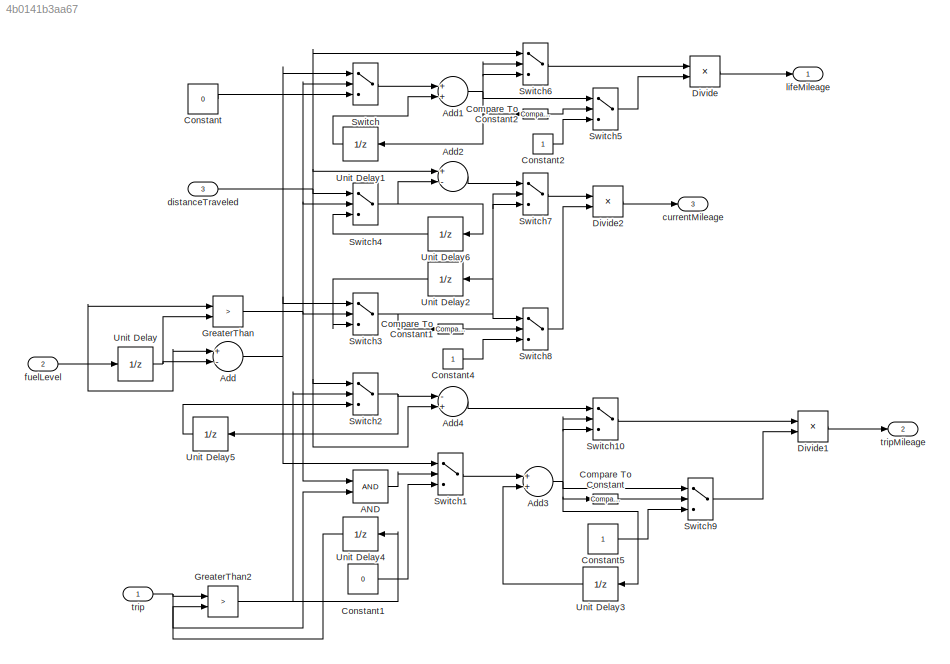
MODEL slx_4b0141b3aa67
KIND model
CONFIG AbsTol = auto
CONFIG EnableMultiTasking = off
CONFIG FixedStep = auto
CONFIG MaxStep = auto
CONFIG MinStep = auto
CONFIG RelTol = 1e-3
CONFIG SampleTimeConstraint = Unconstrained
CONFIG Solver = FixedStepAuto
CONFIG SolverName = FixedStepAuto
CONFIG StartTime = 0.0
CONFIG StopTime = 100
BLOCK [Logic] AND
  AllPortsSameDT = off
  OutDataTypeStr = boolean
  Ports = [2, 1]
BLOCK [Sum] Add
  InputSameDT = off
  Inputs = +-
  OutDataTypeStr = Inherit: Inherit via internal rule
  Ports = [2, 1]
  SaturateOnIntegerOverflow = off
BLOCK [Sum] Add1
  InputSameDT = off
  OutDataTypeStr = Inherit: Inherit via internal rule
  Ports = [2, 1]
  SaturateOnIntegerOverflow = off
BLOCK [Sum] Add2
  InputSameDT = off
  Inputs = +-
  OutDataTypeStr = Inherit: Inherit via internal rule
  Ports = [2, 1]
  SaturateOnIntegerOverflow = off
BLOCK [Sum] Add3
  InputSameDT = off
  OutDataTypeStr = Inherit: Inherit via internal rule
  Ports = [2, 1]
  SaturateOnIntegerOverflow = off
BLOCK [Sum] Add4
  InputSameDT = off
  Inputs = -+
  OutDataTypeStr = Inherit: Inherit via internal rule
  Ports = [2, 1]
  SaturateOnIntegerOverflow = off
BLOCK [Reference] Compare To Constant  REF=simulink/Logic and Bit
Operations/Compare
To Constant
  Ports = [1, 1]
  SourceBlock = simulink/Logic and Bit\nOperations/Compare\nTo Constant
  SourceProductBaseCode = SL
  SourceProductName = Simulink
  SourceType = Compare To Constant
BLOCK [Reference] Compare To Constant1  REF=simulink/Logic and Bit
Operations/Compare
To Constant
  Ports = [1, 1]
  SourceBlock = simulink/Logic and Bit\nOperations/Compare\nTo Constant
  SourceProductBaseCode = SL
  SourceProductName = Simulink
  SourceType = Compare To Constant
BLOCK [Reference] Compare To Constant2  REF=simulink/Logic and Bit
Operations/Compare
To Constant
  Ports = [1, 1]
  SourceBlock = simulink/Logic and Bit\nOperations/Compare\nTo Constant
  SourceProductBaseCode = SL
  SourceProductName = Simulink
  SourceType = Compare To Constant
BLOCK [Constant] Constant
  Value = 0
BLOCK [Constant] Constant1
  Value = 0
BLOCK [Constant] Constant2
BLOCK [Constant] Constant4
BLOCK [Constant] Constant5
BLOCK [Product] Divide
  InputSameDT = off
  Inputs = */
  OutDataTypeStr = Inherit: Inherit via internal rule
  Ports = [2, 1]
  RndMeth = Floor
  SaturateOnIntegerOverflow = off
BLOCK [Product] Divide1
  InputSameDT = off
  Inputs = */
  OutDataTypeStr = Inherit: Inherit via internal rule
  Ports = [2, 1]
  RndMeth = Floor
  SaturateOnIntegerOverflow = off
BLOCK [Product] Divide2
  InputSameDT = off
  Inputs = */
  OutDataTypeStr = Inherit: Inherit via internal rule
  Ports = [2, 1]
  RndMeth = Floor
  SaturateOnIntegerOverflow = off
BLOCK [RelationalOperator] GreaterThan
  InputSameDT = off
  Operator = >
  OutDataTypeStr = boolean
  Ports = [2, 1]
  RndMeth = Simplest
BLOCK [RelationalOperator] GreaterThan2
  InputSameDT = off
  Operator = >
  OutDataTypeStr = boolean
  Ports = [2, 1]
  RndMeth = Simplest
BLOCK [Switch] Switch
  Criteria = u2 ~= 0
  InputSameDT = off
  SaturateOnIntegerOverflow = off
BLOCK [Switch] Switch1
  Criteria = u2 ~= 0
  InputSameDT = off
  SaturateOnIntegerOverflow = off
BLOCK [Switch] Switch10
  Criteria = u2 ~= 0
  InputSameDT = off
  SaturateOnIntegerOverflow = off
BLOCK [Switch] Switch2
  Criteria = u2 ~= 0
  InputSameDT = off
  SaturateOnIntegerOverflow = off
BLOCK [Switch] Switch3
  Criteria = u2 ~= 0
  InputSameDT = off
  SaturateOnIntegerOverflow = off
BLOCK [Switch] Switch4
  Criteria = u2 ~= 0
  InputSameDT = off
  SaturateOnIntegerOverflow = off
BLOCK [Switch] Switch5
  Criteria = u2 ~= 0
  InputSameDT = off
  SaturateOnIntegerOverflow = off
BLOCK [Switch] Switch6
  Criteria = u2 ~= 0
  InputSameDT = off
  SaturateOnIntegerOverflow = off
BLOCK [Switch] Switch7
  Criteria = u2 ~= 0
  InputSameDT = off
  SaturateOnIntegerOverflow = off
BLOCK [Switch] Switch8
  Criteria = u2 ~= 0
  InputSameDT = off
  SaturateOnIntegerOverflow = off
BLOCK [Switch] Switch9
  Criteria = u2 ~= 0
  InputSameDT = off
  SaturateOnIntegerOverflow = off
BLOCK [UnitDelay] Unit Delay
  HasFrameUpgradeWarning = on
  SampleTime = -1
BLOCK [UnitDelay] Unit Delay1
  HasFrameUpgradeWarning = on
  SampleTime = -1
BLOCK [UnitDelay] Unit Delay2
  HasFrameUpgradeWarning = on
  SampleTime = -1
BLOCK [UnitDelay] Unit Delay3
  HasFrameUpgradeWarning = on
  SampleTime = -1
BLOCK [UnitDelay] Unit Delay4
  HasFrameUpgradeWarning = on
  SampleTime = -1
BLOCK [UnitDelay] Unit Delay5
  HasFrameUpgradeWarning = on
  SampleTime = -1
BLOCK [UnitDelay] Unit Delay6
  HasFrameUpgradeWarning = on
  SampleTime = -1
BLOCK [Outport] currentMileage
  IconDisplay = Port number
  Port = 3
BLOCK [Inport] distanceTraveled
  IconDisplay = Port number
  Port = 3
BLOCK [Inport] fuelLevel
  IconDisplay = Port number
  Port = 2
BLOCK [Outport] lifeMileage
  IconDisplay = Port number
BLOCK [Inport] trip
  IconDisplay = Port number
BLOCK [Outport] tripMileage
  IconDisplay = Port number
  Port = 2
LINE AND:1 -> Switch1:2
NET Add1:1 -> Compare To Constant2:1, Switch5:1, Switch6:2, Switch6:3, Unit Delay1:1
LINE Add2:1 -> Switch7:1
NET Add3:1 -> Compare To Constant:1, Switch10:2, Switch10:3, Switch9:1, Unit Delay3:1
LINE Add4:1 -> Switch10:1
NET Add:1 -> Switch1:1, Switch3:1, Switch:1
LINE Compare To Constant1:1 -> Switch8:2
LINE Compare To Constant2:1 -> Switch5:2
LINE Compare To Constant:1 -> Switch9:2
LINE Constant1:1 -> Switch1:3
LINE Constant2:1 -> Switch5:3
LINE Constant4:1 -> Switch8:3
LINE Constant5:1 -> Switch9:3
LINE Constant:1 -> Switch:3
LINE Divide1:1 -> tripMileage:1
LINE Divide2:1 -> currentMileage:1
LINE Divide:1 -> lifeMileage:1
NET GreaterThan2:1 -> Switch2:2, Unit Delay4:1
NET GreaterThan:1 -> AND:1, Switch3:2, Switch4:2, Switch:2
LINE Switch10:1 -> Divide1:1
LINE Switch1:1 -> Add3:1
NET Switch2:1 -> Add4:1, Unit Delay5:1
NET Switch3:1 -> Compare To Constant1:1, Switch7:2, Switch7:3, Switch8:1, Unit Delay2:1
NET Switch4:1 -> Add2:2, Unit Delay6:1
LINE Switch5:1 -> Divide:2
LINE Switch6:1 -> Divide:1
LINE Switch7:1 -> Divide2:1
LINE Switch8:1 -> Divide2:2
LINE Switch9:1 -> Divide1:2
LINE Switch:1 -> Add1:1
LINE Unit Delay1:1 -> Add1:2
LINE Unit Delay2:1 -> Switch3:3
LINE Unit Delay3:1 -> Add3:2
LINE Unit Delay4:1 -> GreaterThan2:2
LINE Unit Delay5:1 -> Switch2:3
LINE Unit Delay6:1 -> Switch4:3
NET Unit Delay:1 -> Add:2, GreaterThan:2
NET distanceTraveled:1 -> Add2:1, Add4:2, Switch2:1, Switch4:1, Switch6:1
NET fuelLevel:1 -> Add:1, GreaterThan:1, Unit Delay:1
NET trip:1 -> AND:2, GreaterThan2:1
note: NET lines group one-source signal fan-out (src -> all destinations, sorted); 1:1 wires keep LINE
